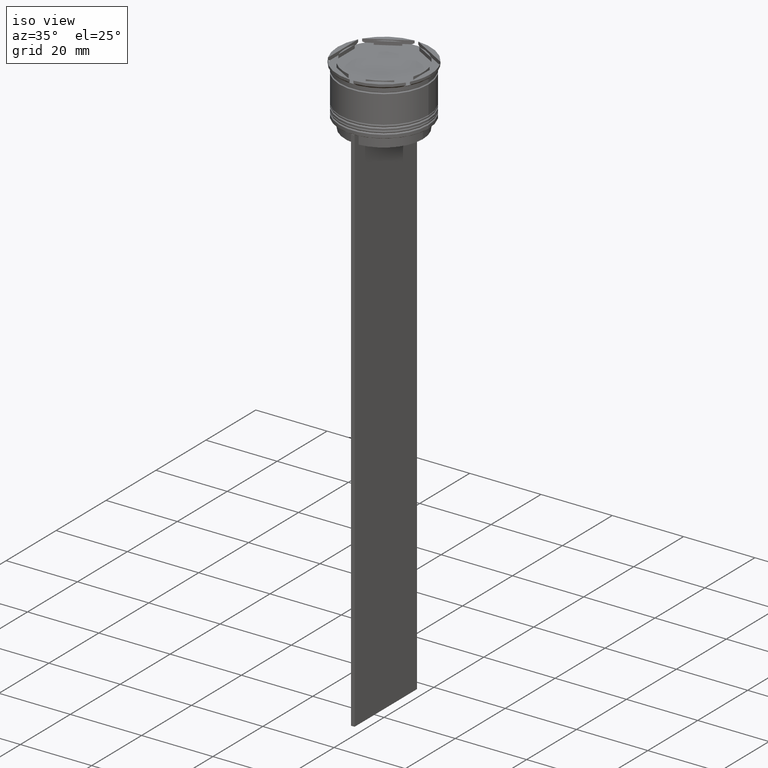
[diagram: clean part render]
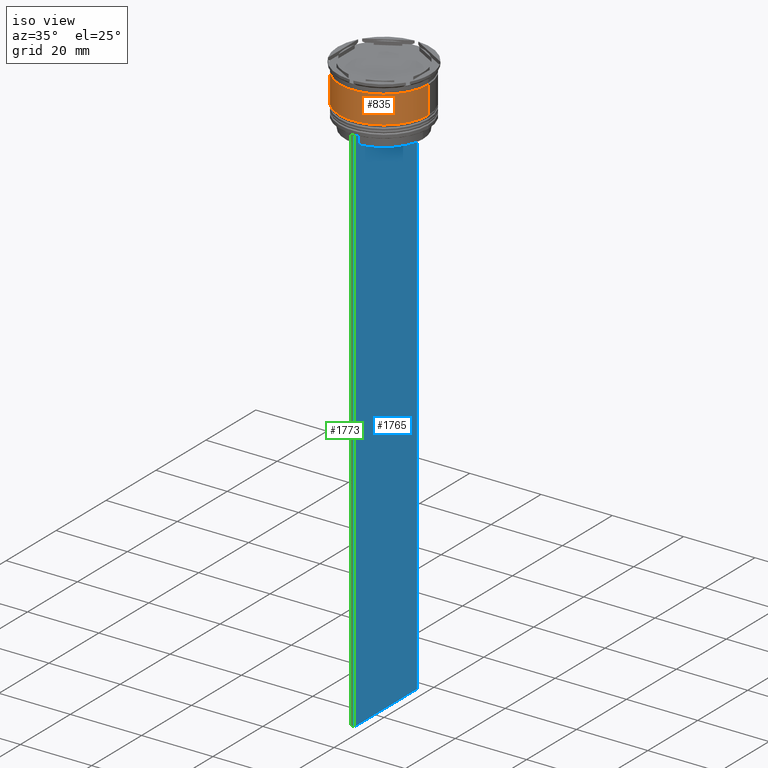
[diagram: same view with three faces highlighted in distinct colors, each labeled with its STEP entity id]
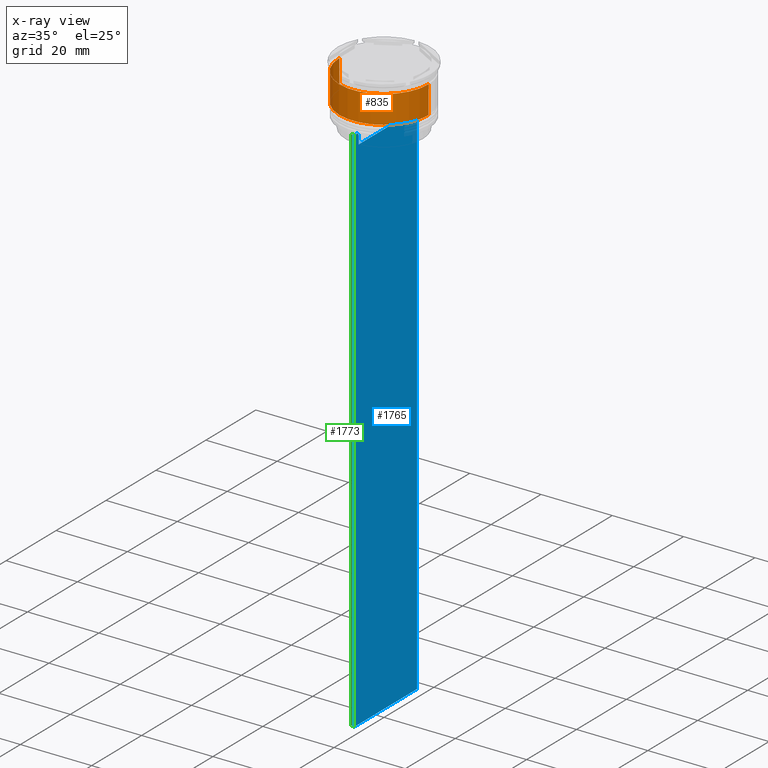
[diagram: x-ray of the same camera — body ghosted, the three highlighted faces saturated]
A machine part, iso view with three faces highlighted in distinct colors.
The next image is the same camera in x-ray (body ghosted, the three faces saturated) — at least one of them is partly hidden behind the body in this view.
Their STEP definitions:

[orange] entity #835 — the highlighted cylindrical surface (partial cylindrical patch) has radius 12.5 mm, axis along (-0, -0, 1).
#14 = EDGE_CURVE ( 'NONE', #2252, #2370, #1924, .T. ) ;
#124 = CARTESIAN_POINT ( 'NONE',  ( 0.000000000000000000, 0.000000000000000000, 0.000000000000000000 ) ) ;
#155 = DIRECTION ( 'NONE',  ( 1.000000000000000000, 0.000000000000000000, 0.000000000000000000 ) ) ;
#218 = AXIS2_PLACEMENT_3D ( 'NONE', #124, #385, #1722 ) ;
#275 = VERTEX_POINT ( 'NONE', #2054 ) ;
#385 = DIRECTION ( 'NONE',  ( -0.000000000000000000, -0.000000000000000000, 1.000000000000000000 ) ) ;
#473 = DIRECTION ( 'NONE',  ( -0.000000000000000000, -0.000000000000000000, 1.000000000000000000 ) ) ;
#523 = CARTESIAN_POINT ( 'NONE',  ( -12.49999999999999822, 1.530808498934191324E-15, -2.699999999999999289 ) ) ;
#556 = ORIENTED_EDGE ( 'NONE', *, *, #2256, .T. ) ;
#579 = FACE_OUTER_BOUND ( 'NONE', #2775, .T. ) ;
#607 = CARTESIAN_POINT ( 'NONE',  ( 12.49999999999999822, 0.000000000000000000, -2.699999999999999289 ) ) ;
#611 = ORIENTED_EDGE ( 'NONE', *, *, #14, .F. ) ;
#674 = CARTESIAN_POINT ( 'NONE',  ( -12.50000000000000355, 1.530808498934191916E-15, -10.50000000000000178 ) ) ;
#725 = VECTOR ( 'NONE', #1699, 1000.000000000000000 ) ;
#810 = VERTEX_POINT ( 'NONE', #607 ) ;
#835 = ADVANCED_FACE ( 'NONE', ( #579 ), #2141, .T. ) ;
#933 = ORIENTED_EDGE ( 'NONE', *, *, #2360, .F. ) ;
#938 = LINE ( 'NONE', #971, #1345 ) ;
#971 = CARTESIAN_POINT ( 'NONE',  ( 12.50000000000000000, 0.000000000000000000, 0.000000000000000000 ) ) ;
#1112 = ORIENTED_EDGE ( 'NONE', *, *, #2430, .T. ) ;
#1345 = VECTOR ( 'NONE', #473, 1000.000000000000000 ) ;
#1361 = CARTESIAN_POINT ( 'NONE',  ( 0.000000000000000000, 0.000000000000000000, -2.699999999999999289 ) ) ;
#1452 = DIRECTION ( 'NONE',  ( -0.000000000000000000, -0.000000000000000000, 1.000000000000000000 ) ) ;
#1635 = AXIS2_PLACEMENT_3D ( 'NONE', #1361, #1638, #2536 ) ;
#1638 = DIRECTION ( 'NONE',  ( -0.000000000000000000, -0.000000000000000000, 1.000000000000000000 ) ) ;
#1699 = DIRECTION ( 'NONE',  ( -0.000000000000000000, -0.000000000000000000, 1.000000000000000000 ) ) ;
#1722 = DIRECTION ( 'NONE',  ( 1.000000000000000000, 0.000000000000000000, 0.000000000000000000 ) ) ;
#1924 = LINE ( 'NONE', #2803, #725 ) ;
#2054 = CARTESIAN_POINT ( 'NONE',  ( 12.50000000000000178, 0.000000000000000000, -10.50000000000000178 ) ) ;
#2141 = CYLINDRICAL_SURFACE ( 'NONE', #218, 12.50000000000000000 ) ;
#2207 = AXIS2_PLACEMENT_3D ( 'NONE', #2395, #1452, #155 ) ;
#2252 = VERTEX_POINT ( 'NONE', #674 ) ;
#2256 = EDGE_CURVE ( 'NONE', #275, #810, #938, .T. ) ;
#2360 = EDGE_CURVE ( 'NONE', #2370, #810, #2704, .T. ) ;
#2370 = VERTEX_POINT ( 'NONE', #523 ) ;
#2395 = CARTESIAN_POINT ( 'NONE',  ( 0.000000000000000000, 0.000000000000000000, -10.50000000000000178 ) ) ;
#2430 = EDGE_CURVE ( 'NONE', #2252, #275, #2615, .T. ) ;
#2536 = DIRECTION ( 'NONE',  ( 1.000000000000000000, 0.000000000000000000, 0.000000000000000000 ) ) ;
#2615 = CIRCLE ( 'NONE', #2207, 12.50000000000000178 ) ;
#2704 = CIRCLE ( 'NONE', #1635, 12.49999999999999822 ) ;
#2775 = EDGE_LOOP ( 'NONE', ( #611, #1112, #556, #933 ) ) ;
#2803 = CARTESIAN_POINT ( 'NONE',  ( -12.50000000000000000, 1.530808498934191521E-15, 0.000000000000000000 ) ) ;

[blue] entity #1765 — the highlighted planar face has unit normal (-1, 0, 0).
#4 = ORIENTED_EDGE ( 'NONE', *, *, #1881, .T. ) ;
#11 = DIRECTION ( 'NONE',  ( 0.000000000000000000, 0.000000000000000000, -1.000000000000000000 ) ) ;
#35 = EDGE_CURVE ( 'NONE', #1406, #2661, #2149, .T. ) ;
#41 = DIRECTION ( 'NONE',  ( 0.000000000000000000, 0.000000000000000000, -1.000000000000000000 ) ) ;
#45 = VECTOR ( 'NONE', #986, 1000.000000000000000 ) ;
#97 = EDGE_CURVE ( 'NONE', #1437, #540, #1775, .T. ) ;
#99 = ORIENTED_EDGE ( 'NONE', *, *, #670, .T. ) ;
#112 = DIRECTION ( 'NONE',  ( 0.000000000000000000, -1.000000000000000000, 0.000000000000000000 ) ) ;
#158 = CARTESIAN_POINT ( 'NONE',  ( 0.5000000000000000000, -11.38902980942626719, -14.00000000000000178 ) ) ;
#160 = ORIENTED_EDGE ( 'NONE', *, *, #2673, .T. ) ;
#176 = CARTESIAN_POINT ( 'NONE',  ( 0.5000000000000000000, 11.05536450345590538, -14.33333719074559376 ) ) ;
#192 = CARTESIAN_POINT ( 'NONE',  ( 0.5000000000000000000, -10.88852607105296322, 0.000000000000000000 ) ) ;
#234 = CARTESIAN_POINT ( 'NONE',  ( 0.5000000000000000000, -12.49999999999999289, 11.01999200639360765 ) ) ;
#252 = VERTEX_POINT ( 'NONE', #2101 ) ;
#282 = VECTOR ( 'NONE', #900, 1000.000000000000000 ) ;
#333 = DIRECTION ( 'NONE',  ( 0.000000000000000000, -1.000000000000000000, 0.000000000000000000 ) ) ;
#335 = LINE ( 'NONE', #975, #2701 ) ;
#352 = EDGE_CURVE ( 'NONE', #252, #1437, #2801, .T. ) ;
#370 = VECTOR ( 'NONE', #41, 1000.000000000000000 ) ;
#371 = VERTEX_POINT ( 'NONE', #1232 ) ;
#377 = ORIENTED_EDGE ( 'NONE', *, *, #1791, .T. ) ;
#407 = CARTESIAN_POINT ( 'NONE',  ( 0.5000000000000000000, 12.50000000000000711, -163.9999999999999716 ) ) ;
#433 = CARTESIAN_POINT ( 'NONE',  ( 0.5000000000000000000, -10.88852607105296322, -14.50000000000000000 ) ) ;
#460 = VECTOR ( 'NONE', #333, 1000.000000000000000 ) ;
#470 = ORIENTED_EDGE ( 'NONE', *, *, #2313, .F. ) ;
#483 = VERTEX_POINT ( 'NONE', #1304 ) ;
#533 = ORIENTED_EDGE ( 'NONE', *, *, #35, .T. ) ;
#540 = VERTEX_POINT ( 'NONE', #1541 ) ;
#626 = EDGE_LOOP ( 'NONE', ( #377, #533, #2594, #2664, #2874, #2793, #99, #1239, #705, #4, #470, #160 ) ) ;
#670 = EDGE_CURVE ( 'NONE', #2028, #252, #1845, .T. ) ;
#684 = LINE ( 'NONE', #2675, #282 ) ;
#705 = ORIENTED_EDGE ( 'NONE', *, *, #97, .T. ) ;
#900 = DIRECTION ( 'NONE',  ( 0.000000000000000000, -1.000000000000000000, 0.000000000000000000 ) ) ;
#914 = CARTESIAN_POINT ( 'NONE',  ( 0.5000000000000000000, -11.22219891450652973, -14.16667035398018903 ) ) ;
#925 = CARTESIAN_POINT ( 'NONE',  ( 0.5000000000000000000, 10.88852607105296322, 0.000000000000000000 ) ) ;
#975 = CARTESIAN_POINT ( 'NONE',  ( 0.5000000000000000000, -12.49999999999999289, -163.9999999999999716 ) ) ;
#986 = DIRECTION ( 'NONE',  ( 0.000000000000000000, 0.000000000000000000, -1.000000000000000000 ) ) ;
#1014 = VECTOR ( 'NONE', #1141, 1000.000000000000000 ) ;
#1043 = CARTESIAN_POINT ( 'NONE',  ( 0.5000000000000000000, -12.49999999999999289, -14.00000000000000178 ) ) ;
#1064 = CARTESIAN_POINT ( 'NONE',  ( 0.5000000000000000000, 10.88852607105296322, -14.50000000000000000 ) ) ;
#1129 = PLANE ( 'NONE',  #1867 ) ;
#1141 = DIRECTION ( 'NONE',  ( 0.000000000000000000, -1.000000000000000000, 0.000000000000000000 ) ) ;
#1181 = LINE ( 'NONE', #925, #370 ) ;
#1232 = CARTESIAN_POINT ( 'NONE',  ( 0.5000000000000000000, 12.50000000000000711, -14.00000000000000178 ) ) ;
#1239 = ORIENTED_EDGE ( 'NONE', *, *, #352, .T. ) ;
#1246 = LINE ( 'NONE', #2560, #460 ) ;
#1292 = LINE ( 'NONE', #192, #2063 ) ;
#1304 = CARTESIAN_POINT ( 'NONE',  ( 0.5000000000000000000, 10.88852607105296144, -17.00000000000000000 ) ) ;
#1333 = FACE_OUTER_BOUND ( 'NONE', #626, .T. ) ;
#1348 = EDGE_CURVE ( 'NONE', #2695, #2028, #1984, .T. ) ;
#1406 = VERTEX_POINT ( 'NONE', #2042 ) ;
#1437 = VERTEX_POINT ( 'NONE', #2776 ) ;
#1541 = CARTESIAN_POINT ( 'NONE',  ( 0.5000000000000000000, -12.49999999999999289, -163.9999999999999716 ) ) ;
#1595 = CARTESIAN_POINT ( 'NONE',  ( 0.5000000000000000000, -10.88852607105296322, -14.50000000000000000 ) ) ;
#1632 = VECTOR ( 'NONE', #1776, 1000.000000000000000 ) ;
#1636 = CARTESIAN_POINT ( 'NONE',  ( 0.5000000000000000000, -12.49999999999999289, -14.00000000000000178 ) ) ;
#1687 = VERTEX_POINT ( 'NONE', #407 ) ;
#1765 = ADVANCED_FACE ( 'NONE', ( #1333 ), #1129, .F. ) ;
#1775 = LINE ( 'NONE', #2658, #2686 ) ;
#1776 = DIRECTION ( 'NONE',  ( 0.000000000000000000, -1.000000000000000000, 0.000000000000000000 ) ) ;
#1788 = DIRECTION ( 'NONE',  ( -1.000000000000000000, 0.000000000000000000, 0.000000000000000000 ) ) ;
#1791 = EDGE_CURVE ( 'NONE', #2848, #1406, #2643, .T. ) ;
#1824 = CARTESIAN_POINT ( 'NONE',  ( 0.5000000000000000000, 10.88852607105296322, -14.50000000000000000 ) ) ;
#1837 = CARTESIAN_POINT ( 'NONE',  ( 0.5000000000000000000, -11.38902980942626719, -14.00000000000000178 ) ) ;
#1845 = LINE ( 'NONE', #1636, #1014 ) ;
#1846 = CARTESIAN_POINT ( 'NONE',  ( 0.5000000000000000000, 12.50000000000000711, 11.01999200639360765 ) ) ;
#1848 = DIRECTION ( 'NONE',  ( 0.000000000000000000, 1.000000000000000000, 0.000000000000000000 ) ) ;
#1867 = AXIS2_PLACEMENT_3D ( 'NONE', #234, #1788, #2703 ) ;
#1881 = EDGE_CURVE ( 'NONE', #540, #1687, #335, .T. ) ;
#1934 = VERTEX_POINT ( 'NONE', #2345 ) ;
#1984 = B_SPLINE_CURVE_WITH_KNOTS ( 'NONE', 3,
 ( #433, #2060, #914, #1837 ),
 .UNSPECIFIED., .F., .F.,
 ( 4, 4 ),
 ( 0.05041323384703226551, 0.05112713601261605068 ),
 .UNSPECIFIED. ) ;
#1997 = VECTOR ( 'NONE', #112, 1000.000000000000000 ) ;
#2028 = VERTEX_POINT ( 'NONE', #158 ) ;
#2042 = CARTESIAN_POINT ( 'NONE',  ( 0.5000000000000000000, 11.38902980942626719, -14.00000000000000178 ) ) ;
#2060 = CARTESIAN_POINT ( 'NONE',  ( 0.5000000000000000000, -11.05536450423839234, -14.33333718996393102 ) ) ;
#2063 = VECTOR ( 'NONE', #2246, 1000.000000000000000 ) ;
#2101 = CARTESIAN_POINT ( 'NONE',  ( 0.5000000000000000000, -12.38991525394746773, -14.00000000000000178 ) ) ;
#2149 = B_SPLINE_CURVE_WITH_KNOTS ( 'NONE', 3,
 ( #2179, #2828, #176, #1064 ),
 .UNSPECIFIED., .F., .F.,
 ( 4, 4 ),
 ( 0.01935560801904634073, 0.02006307108468586772 ),
 .UNSPECIFIED. ) ;
#2151 = CARTESIAN_POINT ( 'NONE',  ( 0.5000000000000000000, 12.38991525394746773, -14.00000000000000178 ) ) ;
#2179 = CARTESIAN_POINT ( 'NONE',  ( 0.5000000000000000000, 11.38902980942626719, -14.00000000000000178 ) ) ;
#2218 = EDGE_CURVE ( 'NONE', #1934, #2695, #1292, .T. ) ;
#2246 = DIRECTION ( 'NONE',  ( -0.000000000000000000, -0.000000000000000000, 1.000000000000000000 ) ) ;
#2313 = EDGE_CURVE ( 'NONE', #371, #1687, #2743, .T. ) ;
#2345 = CARTESIAN_POINT ( 'NONE',  ( 0.5000000000000000000, -10.88852607105296144, -17.00000000000000000 ) ) ;
#2391 = EDGE_CURVE ( 'NONE', #2661, #483, #1181, .T. ) ;
#2439 = CARTESIAN_POINT ( 'NONE',  ( 0.5000000000000000000, -12.49999999999999289, -14.00000000000000178 ) ) ;
#2559 = EDGE_CURVE ( 'NONE', #483, #1934, #1246, .T. ) ;
#2560 = CARTESIAN_POINT ( 'NONE',  ( 0.5000000000000000000, 10.90000000000000213, -17.00000000000000000 ) ) ;
#2594 = ORIENTED_EDGE ( 'NONE', *, *, #2391, .T. ) ;
#2643 = LINE ( 'NONE', #2439, #1632 ) ;
#2658 = CARTESIAN_POINT ( 'NONE',  ( 0.5000000000000000000, -12.49999999999999289, 11.01999200639360765 ) ) ;
#2661 = VERTEX_POINT ( 'NONE', #1824 ) ;
#2664 = ORIENTED_EDGE ( 'NONE', *, *, #2559, .T. ) ;
#2673 = EDGE_CURVE ( 'NONE', #371, #2848, #684, .T. ) ;
#2675 = CARTESIAN_POINT ( 'NONE',  ( 0.5000000000000000000, -12.49999999999999289, -14.00000000000000178 ) ) ;
#2686 = VECTOR ( 'NONE', #11, 1000.000000000000000 ) ;
#2695 = VERTEX_POINT ( 'NONE', #1595 ) ;
#2701 = VECTOR ( 'NONE', #1848, 1000.000000000000000 ) ;
#2703 = DIRECTION ( 'NONE',  ( 0.000000000000000000, 0.000000000000000000, 1.000000000000000000 ) ) ;
#2743 = LINE ( 'NONE', #1846, #45 ) ;
#2776 = CARTESIAN_POINT ( 'NONE',  ( 0.5000000000000000000, -12.49999999999999289, -14.00000000000000178 ) ) ;
#2793 = ORIENTED_EDGE ( 'NONE', *, *, #1348, .T. ) ;
#2801 = LINE ( 'NONE', #1043, #1997 ) ;
#2828 = CARTESIAN_POINT ( 'NONE',  ( 0.5000000000000000000, 11.22219891375843304, -14.16667035472756808 ) ) ;
#2848 = VERTEX_POINT ( 'NONE', #2151 ) ;
#2874 = ORIENTED_EDGE ( 'NONE', *, *, #2218, .T. ) ;

[green] entity #1773 — the highlighted planar face has unit normal (0, -1, -0).
#11 = DIRECTION ( 'NONE',  ( 0.000000000000000000, 0.000000000000000000, -1.000000000000000000 ) ) ;
#97 = EDGE_CURVE ( 'NONE', #1437, #540, #1775, .T. ) ;
#226 = VECTOR ( 'NONE', #243, 1000.000000000000000 ) ;
#243 = DIRECTION ( 'NONE',  ( 1.000000000000000000, 0.000000000000000000, 0.000000000000000000 ) ) ;
#268 = EDGE_CURVE ( 'NONE', #540, #503, #2119, .T. ) ;
#405 = EDGE_CURVE ( 'NONE', #1974, #503, #2190, .T. ) ;
#503 = VERTEX_POINT ( 'NONE', #1314 ) ;
#540 = VERTEX_POINT ( 'NONE', #1541 ) ;
#592 = CARTESIAN_POINT ( 'NONE',  ( -0.5000000000000000000, -12.49999999999999289, 11.01999200639360765 ) ) ;
#649 = LINE ( 'NONE', #1099, #226 ) ;
#870 = DIRECTION ( 'NONE',  ( 0.000000000000000000, 0.000000000000000000, -1.000000000000000000 ) ) ;
#928 = CARTESIAN_POINT ( 'NONE',  ( -0.5000000000000000000, -12.49999999999999289, -14.00000000000000178 ) ) ;
#929 = ORIENTED_EDGE ( 'NONE', *, *, #268, .F. ) ;
#1099 = CARTESIAN_POINT ( 'NONE',  ( 0.5000000000000000000, -12.49999999999999289, -14.00000000000000178 ) ) ;
#1145 = CARTESIAN_POINT ( 'NONE',  ( 0.5000000000000000000, -12.49999999999999289, -163.9999999999999716 ) ) ;
#1147 = CARTESIAN_POINT ( 'NONE',  ( 0.5000000000000000000, -12.49999999999999289, 11.01999200639360765 ) ) ;
#1314 = CARTESIAN_POINT ( 'NONE',  ( -0.5000000000000000000, -12.49999999999999289, -163.9999999999999716 ) ) ;
#1437 = VERTEX_POINT ( 'NONE', #2776 ) ;
#1475 = VECTOR ( 'NONE', #1481, 1000.000000000000000 ) ;
#1481 = DIRECTION ( 'NONE',  ( 0.000000000000000000, 0.000000000000000000, -1.000000000000000000 ) ) ;
#1541 = CARTESIAN_POINT ( 'NONE',  ( 0.5000000000000000000, -12.49999999999999289, -163.9999999999999716 ) ) ;
#1602 = DIRECTION ( 'NONE',  ( -1.000000000000000000, 0.000000000000000000, 0.000000000000000000 ) ) ;
#1724 = AXIS2_PLACEMENT_3D ( 'NONE', #1147, #2867, #870 ) ;
#1759 = PLANE ( 'NONE',  #1724 ) ;
#1773 = ADVANCED_FACE ( 'NONE', ( #2448 ), #1759, .T. ) ;
#1775 = LINE ( 'NONE', #2658, #2686 ) ;
#1779 = ORIENTED_EDGE ( 'NONE', *, *, #97, .F. ) ;
#1949 = VECTOR ( 'NONE', #1602, 1000.000000000000000 ) ;
#1974 = VERTEX_POINT ( 'NONE', #928 ) ;
#2097 = ORIENTED_EDGE ( 'NONE', *, *, #405, .T. ) ;
#2119 = LINE ( 'NONE', #1145, #1949 ) ;
#2138 = EDGE_CURVE ( 'NONE', #1974, #1437, #649, .T. ) ;
#2190 = LINE ( 'NONE', #592, #1475 ) ;
#2212 = EDGE_LOOP ( 'NONE', ( #2582, #2097, #929, #1779 ) ) ;
#2448 = FACE_OUTER_BOUND ( 'NONE', #2212, .T. ) ;
#2582 = ORIENTED_EDGE ( 'NONE', *, *, #2138, .F. ) ;
#2658 = CARTESIAN_POINT ( 'NONE',  ( 0.5000000000000000000, -12.49999999999999289, 11.01999200639360765 ) ) ;
#2686 = VECTOR ( 'NONE', #11, 1000.000000000000000 ) ;
#2776 = CARTESIAN_POINT ( 'NONE',  ( 0.5000000000000000000, -12.49999999999999289, -14.00000000000000178 ) ) ;
#2867 = DIRECTION ( 'NONE',  ( 0.000000000000000000, -1.000000000000000000, -0.000000000000000000 ) ) ;